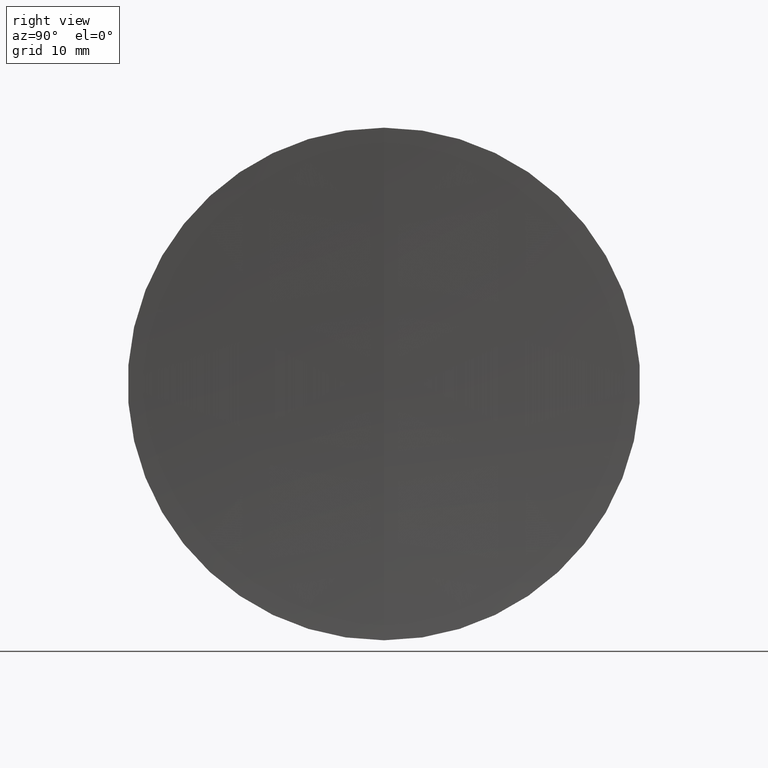
[diagram: clean part render]
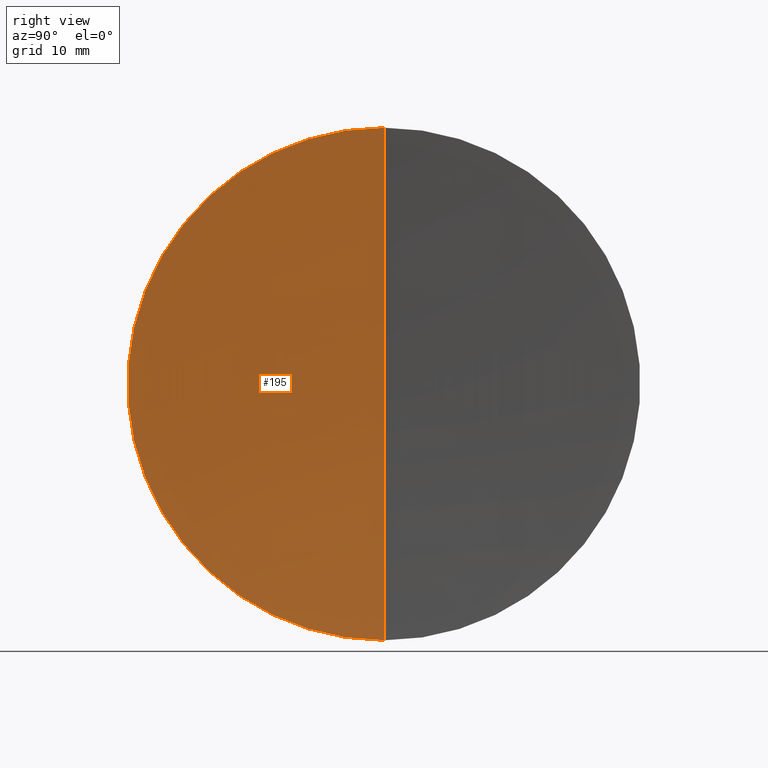
[diagram: same view with one face highlighted and labeled with its STEP entity id]
A machine part, right view. The second image highlights one B-rep face of the part: STEP entity #195.
In plain terms, the highlighted spherical surface has radius 376.25 mm.
Its self-contained STEP definition (entity closure, byte-faithful):
#16 = DIRECTION ( 'NONE',  ( 0.0000000000000000000, -1.000000000000000000, -1.224646799147353200E-016 ) ) ;
#20 = EDGE_CURVE ( 'NONE', #305, #276, #72, .T. ) ;
#25 = EDGE_LOOP ( 'NONE', ( #52, #337, #224 ) ) ;
#52 = ORIENTED_EDGE ( 'NONE', *, *, #270, .F. ) ;
#58 = CARTESIAN_POINT ( 'NONE',  ( 209.7231034970280100, 0.0000000000000000000, -25.40000000000006300 ) ) ;
#70 = CARTESIAN_POINT ( 'NONE',  ( 585.1147689612468000, 0.0000000000000000000, 0.0000000000000000000 ) ) ;
#72 = CIRCLE ( 'NONE', #153, 25.40000000000001300 ) ;
#73 = DIRECTION ( 'NONE',  ( 0.0000000000000000000, 1.000000000000000000, -0.0000000000000000000 ) ) ;
#78 = CIRCLE ( 'NONE', #221, 376.2500000000000000 ) ;
#87 = CARTESIAN_POINT ( 'NONE',  ( 585.1147689612468000, 0.0000000000000000000, 0.0000000000000000000 ) ) ;
#105 = CARTESIAN_POINT ( 'NONE',  ( 209.7231034970280100, -3.110602869834284800E-015, 25.40000000000006300 ) ) ;
#117 = CARTESIAN_POINT ( 'NONE',  ( 209.7231034970280100, 0.0000000000000000000, 0.0000000000000000000 ) ) ;
#143 = DIRECTION ( 'NONE',  ( -1.000000000000000000, -0.0000000000000000000, -0.0000000000000000000 ) ) ;
#149 = AXIS2_PLACEMENT_3D ( 'NONE', #70, #174, #285 ) ;
#153 = AXIS2_PLACEMENT_3D ( 'NONE', #117, #143, #207 ) ;
#174 = DIRECTION ( 'NONE',  ( -0.0000000000000000000, -1.000000000000000000, -0.0000000000000000000 ) ) ;
#195 = ADVANCED_FACE ( 'NONE', ( #254 ), #332, .F. ) ;
#196 = CARTESIAN_POINT ( 'NONE',  ( 585.1147689612468000, 0.0000000000000000000, 0.0000000000000000000 ) ) ;
#207 = DIRECTION ( 'NONE',  ( 0.0000000000000000000, 0.0000000000000000000, 1.000000000000000000 ) ) ;
#221 = AXIS2_PLACEMENT_3D ( 'NONE', #196, #73, #265 ) ;
#224 = ORIENTED_EDGE ( 'NONE', *, *, #308, .T. ) ;
#254 = FACE_OUTER_BOUND ( 'NONE', #25, .T. ) ;
#265 = DIRECTION ( 'NONE',  ( 0.0000000000000000000, 0.0000000000000000000, 1.000000000000000000 ) ) ;
#269 = CARTESIAN_POINT ( 'NONE',  ( 208.8647689612468500, 0.0000000000000000000, -2.303866790895958100E-014 ) ) ;
#270 = EDGE_CURVE ( 'NONE', #276, #297, #344, .T. ) ;
#276 = VERTEX_POINT ( 'NONE', #105 ) ;
#285 = DIRECTION ( 'NONE',  ( 0.0000000000000000000, 0.0000000000000000000, -1.000000000000000000 ) ) ;
#297 = VERTEX_POINT ( 'NONE', #269 ) ;
#305 = VERTEX_POINT ( 'NONE', #58 ) ;
#308 = EDGE_CURVE ( 'NONE', #305, #297, #78, .T. ) ;
#316 = DIRECTION ( 'NONE',  ( 0.0000000000000000000, 1.224646799147353200E-016, -1.000000000000000000 ) ) ;
#326 = AXIS2_PLACEMENT_3D ( 'NONE', #87, #16, #316 ) ;
#332 = SPHERICAL_SURFACE ( 'NONE', #149, 376.2500000000000000 ) ;
#337 = ORIENTED_EDGE ( 'NONE', *, *, #20, .F. ) ;
#344 = CIRCLE ( 'NONE', #326, 376.2500000000000000 ) ;